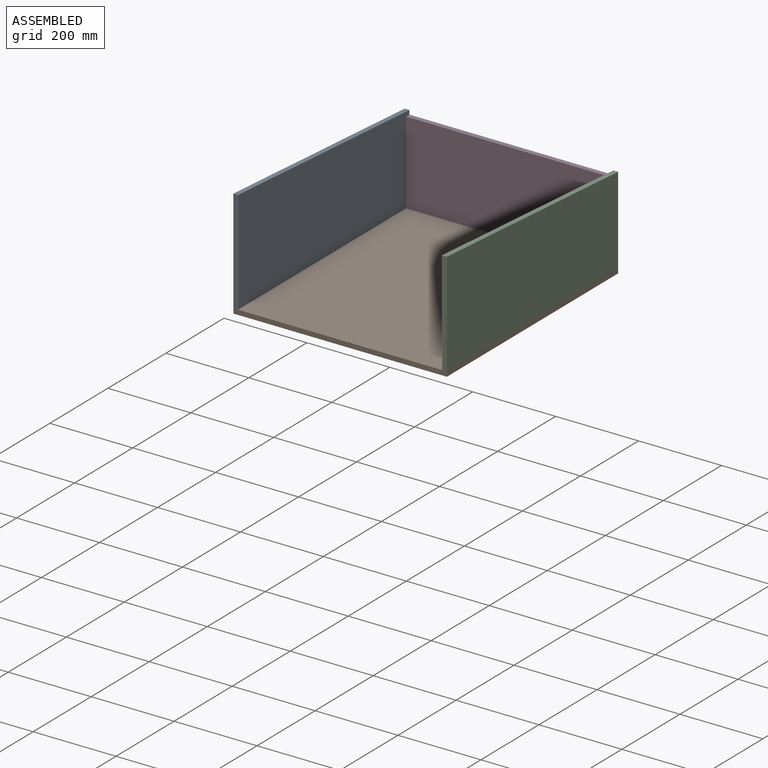
[diagram: assembled view]
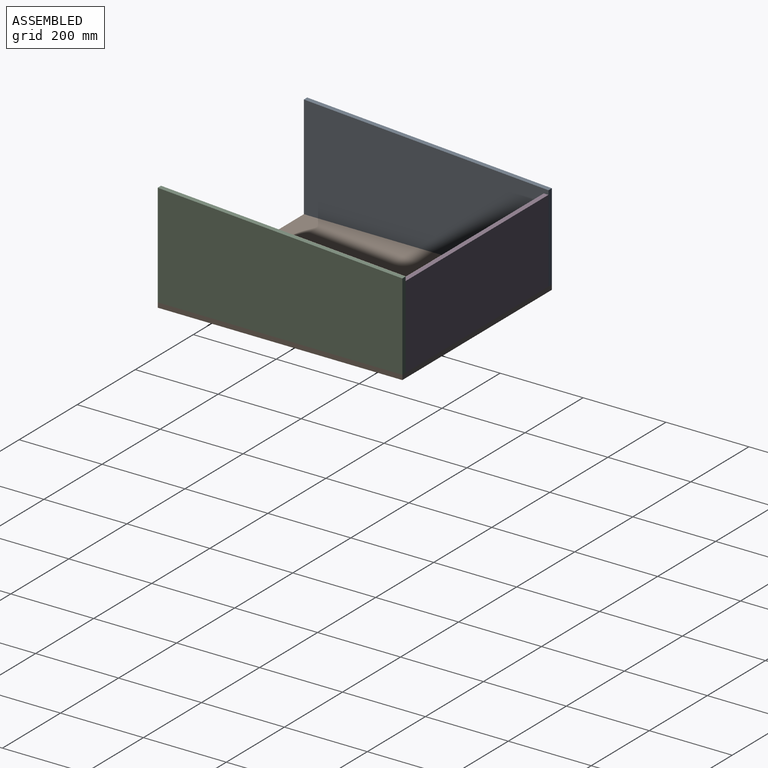
[diagram: assembled view, second angle]
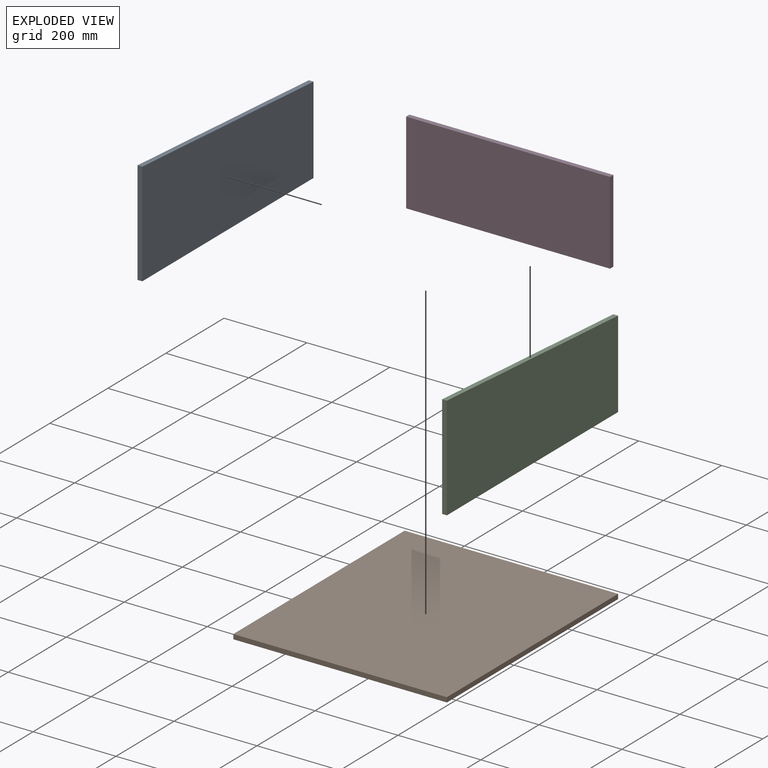
[diagram: exploded view]
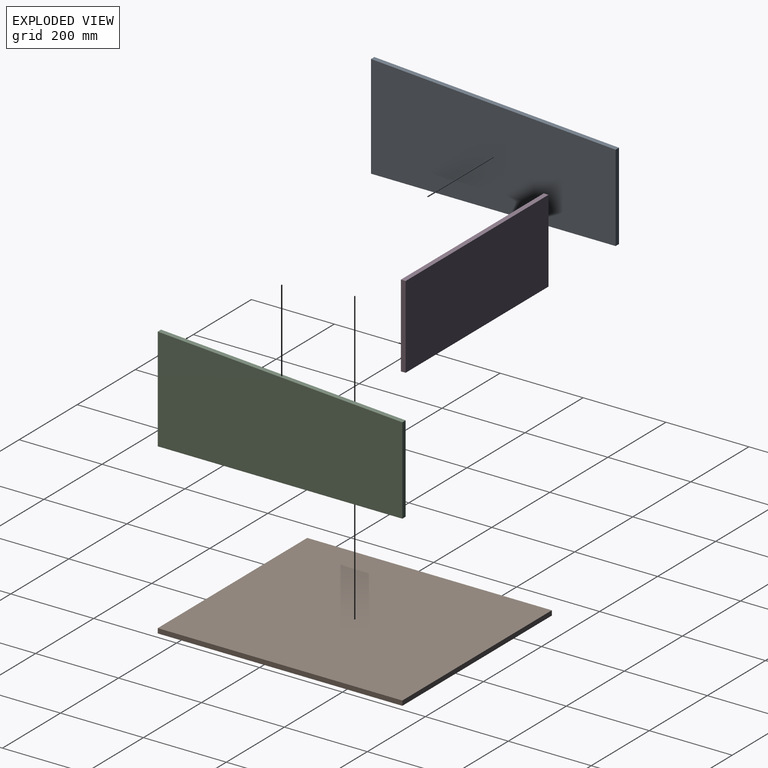
[diagram: exploded view, second angle]
ASSEMBLY  parts=4 mates=3
PART A: 6 faces, bbox 11.5x590x250 mm
  f0: plane 210x11.5mm, normal (0,1,0), area 2415mm2, adj f1,f3,f4,f5
  f1: plane 590x40mm, normal (0,0.07,1), area 6800.6mm2, adj f0,f2,f4,f5
  f2: plane 250x11.5mm, normal (0,-1,0), area 2875mm2, adj f1,f3,f4,f5
  f3: plane 590x11.5mm, normal (0,0,-1), area 6785mm2, adj f0,f2,f4,f5
  f4: plane 590x250mm, normal (1,0,0), area 135700mm2, adj f0,f1,f2,f3
  f5: plane 590x250mm, normal (-1,0,0), area 135700mm2, adj f0,f1,f2,f3
PART B: 6 faces, bbox 515x590x11.5 mm
  f0: plane 590x11.5mm, normal (1,0,0), area 6785mm2, adj f1,f3,f4,f5
  f1: plane 515x11.5mm, normal (0,1,0), area 5922.5mm2, adj f0,f2,f4,f5
  f2: plane 590x11.5mm, normal (-1,0,0), area 6785mm2, adj f1,f3,f4,f5
  f3: plane 515x11.5mm, normal (0,-1,0), area 5922.5mm2, adj f0,f2,f4,f5
  f4: plane 590x515mm, normal (0,0,1), area 303850mm2, adj f0,f1,f2,f3
  f5: plane 590x515mm, normal (0,0,-1), area 303850mm2, adj f0,f1,f2,f3
PART C: same geometry as A
PART D: 6 faces, bbox 492x11.5x200 mm
  f0: plane 200x11.5mm, normal (1,0,0), area 2300mm2, adj f1,f3,f4,f5
  f1: plane 492x11.5mm, normal (0,0,1), area 5658mm2, adj f0,f2,f4,f5
  f2: plane 200x11.5mm, normal (-1,0,0), area 2300mm2, adj f1,f3,f4,f5
  f3: plane 492x11.5mm, normal (0,0,-1), area 5658mm2, adj f0,f2,f4,f5
  f4: plane 492x200mm, normal (0,-1,0), area 98400mm2, adj f0,f1,f2,f3
  f5: plane 492x200mm, normal (0,1,0), area 98400mm2, adj f0,f1,f2,f3
PLACE A t=(-308.4,54.11,233.11)mm
PLACE B t=(-50.9,54.11,116.61)mm fixed
PLACE C t=(195.1,54.11,233.11)mm
PLACE D t=(-50.9,349.11,228.11)mm
MATE fastened A.f3 <-> B.f4  axis (0,0,-1) through (-308.4,-240.89,128.11)mm
MATE fastened D.f2 <-> A.f4  axis (-1,0,0) through (-296.9,349.11,128.11)mm
MATE fastened C.f3 <-> B.f4  axis (0,0,-1) through (206.6,349.11,128.11)mm
